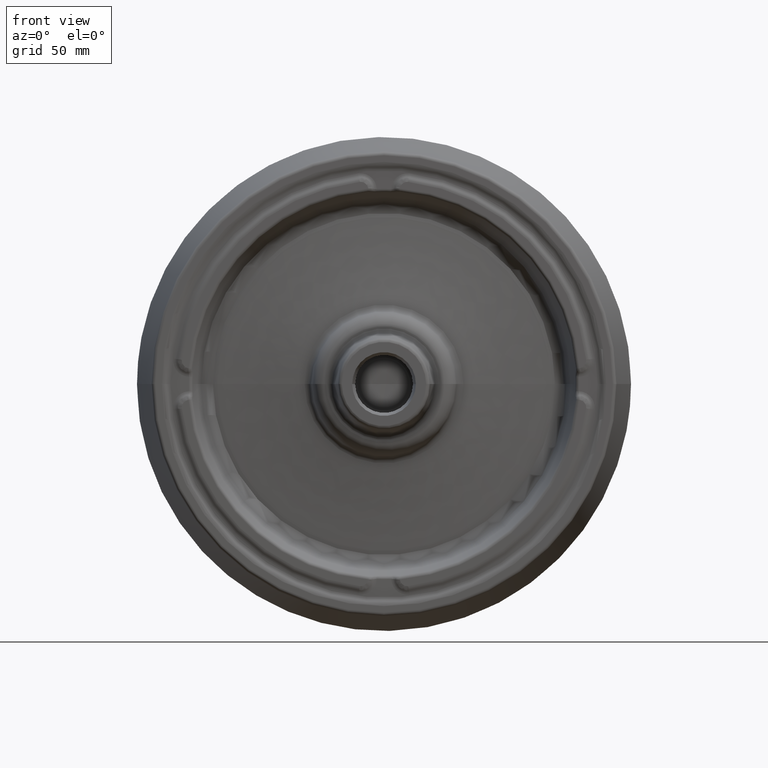
[diagram: clean part render]
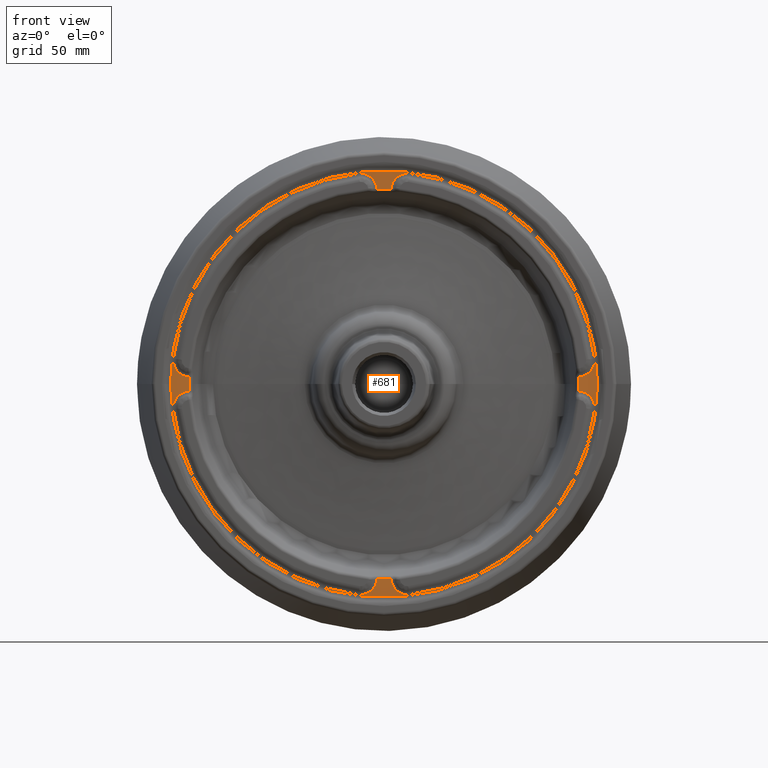
[diagram: same view with one face highlighted and labeled with its STEP entity id]
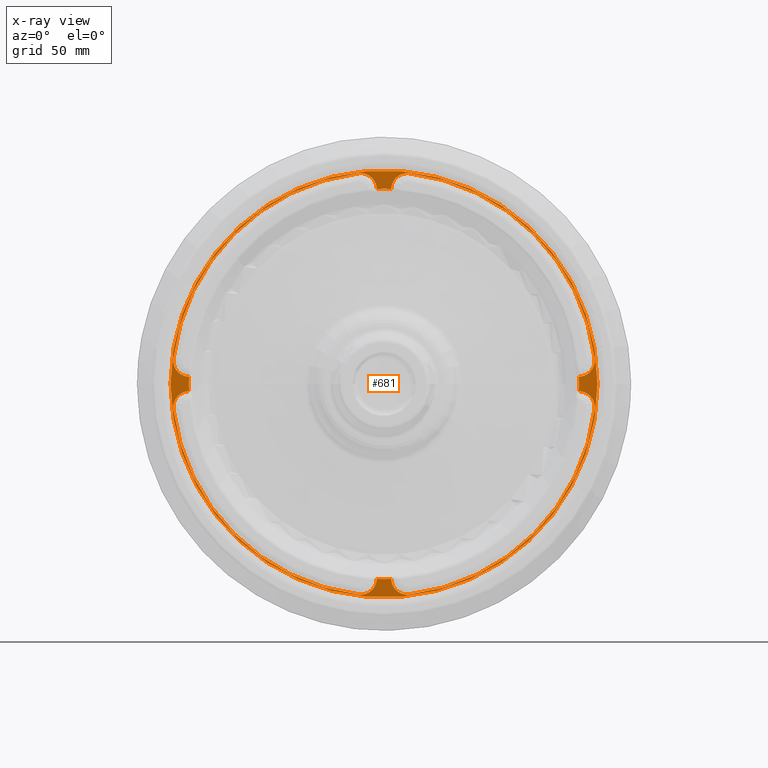
[diagram: x-ray of the same camera — body ghosted, the highlighted face saturated]
A machine part, front view. The second image highlights one B-rep face of the part: STEP entity #681.
The next image is the same camera in x-ray: the body ghosted, the highlighted face saturated — about 0% of this face is hidden behind the body in this view.
In plain terms, the highlighted planar face has unit normal (0, -1, 0).
Its self-contained STEP definition (entity closure, byte-faithful):
#201=FACE_BOUND('',#1663,.T.);
#202=FACE_BOUND('',#1664,.T.);
#441=PLANE('',#6297);
#681=ADVANCED_FACE('',(#201,#202),#441,.T.);
#1663=EDGE_LOOP('',(#2539,#2540));
#1664=EDGE_LOOP('',(#2541,#2542,#2543,#2544,#2545,#2546,#2547,#2548,#2549,
#2550,#2551,#2552,#2553,#2554,#2555,#2556));
#2539=ORIENTED_EDGE('',*,*,#4935,.T.);
#2540=ORIENTED_EDGE('',*,*,#4936,.T.);
#2541=ORIENTED_EDGE('',*,*,#4937,.F.);
#2542=ORIENTED_EDGE('',*,*,#4881,.F.);
#2543=ORIENTED_EDGE('',*,*,#4879,.F.);
#2544=ORIENTED_EDGE('',*,*,#4934,.T.);
#2545=ORIENTED_EDGE('',*,*,#4938,.F.);
#2546=ORIENTED_EDGE('',*,*,#4939,.F.);
#2547=ORIENTED_EDGE('',*,*,#4940,.F.);
#2548=ORIENTED_EDGE('',*,*,#4941,.T.);
#2549=ORIENTED_EDGE('',*,*,#4942,.F.);
#2550=ORIENTED_EDGE('',*,*,#4943,.F.);
#2551=ORIENTED_EDGE('',*,*,#4944,.F.);
#2552=ORIENTED_EDGE('',*,*,#4945,.T.);
#2553=ORIENTED_EDGE('',*,*,#4946,.F.);
#2554=ORIENTED_EDGE('',*,*,#4947,.F.);
#2555=ORIENTED_EDGE('',*,*,#4948,.F.);
#2556=ORIENTED_EDGE('',*,*,#4949,.T.);
#4341=VERTEX_POINT('',#8381);
#4342=VERTEX_POINT('',#8421);
#4343=VERTEX_POINT('',#8425);
#4386=VERTEX_POINT('',#8627);
#4387=VERTEX_POINT('',#8631);
#4388=VERTEX_POINT('',#8632);
#4389=VERTEX_POINT('',#8635);
#4390=VERTEX_POINT('',#8637);
#4391=VERTEX_POINT('',#8639);
#4392=VERTEX_POINT('',#8641);
#4393=VERTEX_POINT('',#8643);
#4394=VERTEX_POINT('',#8645);
#4395=VERTEX_POINT('',#8647);
#4396=VERTEX_POINT('',#8649);
#4397=VERTEX_POINT('',#8651);
#4398=VERTEX_POINT('',#8653);
#4399=VERTEX_POINT('',#8655);
#4400=VERTEX_POINT('',#8657);
#4879=EDGE_CURVE('',#4341,#4342,#5814,.T.);
#4881=EDGE_CURVE('',#4342,#4343,#5816,.T.);
#4934=EDGE_CURVE('',#4341,#4386,#5851,.T.);
#4935=EDGE_CURVE('',#4387,#4388,#5852,.T.);
#4936=EDGE_CURVE('',#4388,#4387,#5853,.T.);
#4937=EDGE_CURVE('',#4343,#4389,#5854,.T.);
#4938=EDGE_CURVE('',#4390,#4386,#5855,.T.);
#4939=EDGE_CURVE('',#4391,#4390,#5856,.T.);
#4940=EDGE_CURVE('',#4392,#4391,#5857,.T.);
#4941=EDGE_CURVE('',#4392,#4393,#5858,.T.);
#4942=EDGE_CURVE('',#4394,#4393,#5859,.T.);
#4943=EDGE_CURVE('',#4395,#4394,#5860,.T.);
#4944=EDGE_CURVE('',#4396,#4395,#5861,.T.);
#4945=EDGE_CURVE('',#4396,#4397,#5862,.T.);
#4946=EDGE_CURVE('',#4398,#4397,#5863,.T.);
#4947=EDGE_CURVE('',#4399,#4398,#5864,.T.);
#4948=EDGE_CURVE('',#4400,#4399,#5865,.T.);
#4949=EDGE_CURVE('',#4400,#4389,#5866,.T.);
#5814=CIRCLE('',#6231,12.472135955);
#5816=CIRCLE('',#6234,162.972135955);
#5851=CIRCLE('',#6280,149.8726821461);
#5852=CIRCLE('',#6282,164.027864045);
#5853=CIRCLE('',#6283,164.027864045);
#5854=CIRCLE('',#6284,12.472135955);
#5855=CIRCLE('',#6285,12.472135955);
#5856=CIRCLE('',#6286,162.972135955);
#5857=CIRCLE('',#6287,12.472135955);
#5858=CIRCLE('',#6288,149.8726821461);
#5859=CIRCLE('',#6289,12.472135955);
#5860=CIRCLE('',#6290,162.972135955);
#5861=CIRCLE('',#6291,12.472135955);
#5862=CIRCLE('',#6292,149.8726821461);
#5863=CIRCLE('',#6293,12.472135955);
#5864=CIRCLE('',#6294,162.972135955);
#5865=CIRCLE('',#6295,12.472135955);
#5866=CIRCLE('',#6296,149.8726821461);
#6231=AXIS2_PLACEMENT_3D('',#8420,#6889,#6890);
#6234=AXIS2_PLACEMENT_3D('',#8424,#6895,#6896);
#6280=AXIS2_PLACEMENT_3D('',#8628,#6989,#6990);
#6282=AXIS2_PLACEMENT_3D('',#8630,#6993,#6994);
#6283=AXIS2_PLACEMENT_3D('',#8633,#6995,#6996);
#6284=AXIS2_PLACEMENT_3D('',#8634,#6997,#6998);
#6285=AXIS2_PLACEMENT_3D('',#8636,#6999,#7000);
#6286=AXIS2_PLACEMENT_3D('',#8638,#7001,#7002);
#6287=AXIS2_PLACEMENT_3D('',#8640,#7003,#7004);
#6288=AXIS2_PLACEMENT_3D('',#8642,#7005,#7006);
#6289=AXIS2_PLACEMENT_3D('',#8644,#7007,#7008);
#6290=AXIS2_PLACEMENT_3D('',#8646,#7009,#7010);
#6291=AXIS2_PLACEMENT_3D('',#8648,#7011,#7012);
#6292=AXIS2_PLACEMENT_3D('',#8650,#7013,#7014);
#6293=AXIS2_PLACEMENT_3D('',#8652,#7015,#7016);
#6294=AXIS2_PLACEMENT_3D('',#8654,#7017,#7018);
#6295=AXIS2_PLACEMENT_3D('',#8656,#7019,#7020);
#6296=AXIS2_PLACEMENT_3D('',#8658,#7021,#7022);
#6297=AXIS2_PLACEMENT_3D('',#8659,#7023,#7024);
#6889=DIRECTION('',(0.,-1.,0.));
#6890=DIRECTION('',(-0.0281275170789497,0.,0.999604343119303));
#6895=DIRECTION('',(0.,-1.,0.));
#6896=DIRECTION('',(-0.992821999214597,0.,-0.1196013289037));
#6989=DIRECTION('',(0.,1.,0.));
#6990=DIRECTION('',(-0.999318348193092,0.,-0.0369166488813797));
#6993=DIRECTION('',(0.,-1.,0.));
#6994=DIRECTION('',(1.,0.,0.));
#6995=DIRECTION('',(0.,-1.,0.));
#6996=DIRECTION('',(-1.,0.,0.));
#6997=DIRECTION('',(0.,-1.,0.));
#6998=DIRECTION('',(-0.119601328903601,0.,-0.992821999214608));
#6999=DIRECTION('',(0.,-1.,0.));
#7000=DIRECTION('',(-0.992821999214597,0.,0.1196013289037));
#7001=DIRECTION('',(0.,-1.,0.));
#7002=DIRECTION('',(-0.1196013289037,0.,0.992821999214597));
#7003=DIRECTION('',(0.,-1.,0.));
#7004=DIRECTION('',(0.999604343119304,0.,0.0281275170789297));
#7005=DIRECTION('',(0.,1.,0.));
#7006=DIRECTION('',(-0.0369166488828713,0.,0.999318348193036));
#7007=DIRECTION('',(0.,-1.,0.));
#7008=DIRECTION('',(0.1196013289037,0.,0.992821999214597));
#7009=DIRECTION('',(0.,-1.,0.));
#7010=DIRECTION('',(0.992821999214597,0.,0.1196013289037));
#7011=DIRECTION('',(0.,-1.,0.));
#7012=DIRECTION('',(0.0281275170789497,0.,-0.999604343119303));
#7013=DIRECTION('',(0.,1.,0.));
#7014=DIRECTION('',(0.999318348193092,0.,0.0369166488813797));
#7015=DIRECTION('',(0.,-1.,0.));
#7016=DIRECTION('',(0.992821999214597,0.,-0.1196013289037));
#7017=DIRECTION('',(0.,-1.,0.));
#7018=DIRECTION('',(0.1196013289037,0.,-0.992821999214597));
#7019=DIRECTION('',(0.,-1.,0.));
#7020=DIRECTION('',(-0.999604343119304,0.,-0.0281275170789297));
#7021=DIRECTION('',(0.,1.,0.));
#7022=DIRECTION('',(0.0369166488828713,0.,-0.999318348193036));
#7023=DIRECTION('',(0.,-1.,0.));
#7024=DIRECTION('',(1.,0.,0.));
#8381=CARTESIAN_POINT('',(-149.7705211135,1.999979667506,-5.532798347614));
#8420=CARTESIAN_POINT('',(-149.4197108818,2.,-18.));
#8421=CARTESIAN_POINT('',(-161.8023218351,2.,-19.49168403449));
#8424=CARTESIAN_POINT('',(0.,2.,0.));
#8425=CARTESIAN_POINT('',(-19.49168403448,2.,-161.8023218351));
#8627=CARTESIAN_POINT('',(-149.7705211123,1.999981977739,5.532798398588));
#8628=CARTESIAN_POINT('',(0.,2.,0.));
#8630=CARTESIAN_POINT('',(0.,2.,0.));
#8631=CARTESIAN_POINT('',(164.027864045,2.,-1.031764928282E-014));
#8632=CARTESIAN_POINT('',(-164.027864045,2.,0.));
#8633=CARTESIAN_POINT('',(0.,2.,0.));
#8634=CARTESIAN_POINT('',(-18.,2.,-149.4197108818));
#8635=CARTESIAN_POINT('',(-5.532797299454,2.,-149.7705211572));
#8636=CARTESIAN_POINT('',(-149.4197108818,2.,18.));
#8637=CARTESIAN_POINT('',(-161.8023218351,2.,19.49168403449));
#8638=CARTESIAN_POINT('',(0.,2.,0.));
#8639=CARTESIAN_POINT('',(-19.49168403448,2.,161.8023218351));
#8640=CARTESIAN_POINT('',(-18.,2.,149.4197108818));
#8641=CARTESIAN_POINT('',(-5.53279834758,1.999979667506,149.7705211135));
#8642=CARTESIAN_POINT('',(0.,2.,0.));
#8643=CARTESIAN_POINT('',(5.532797299453,2.,149.7705211572));
#8644=CARTESIAN_POINT('',(18.,2.,149.4197108818));
#8645=CARTESIAN_POINT('',(19.49168403448,2.,161.8023218351));
#8646=CARTESIAN_POINT('',(0.,2.,0.));
#8647=CARTESIAN_POINT('',(161.8023218351,2.,19.49168403448));
#8648=CARTESIAN_POINT('',(149.4197108818,2.,18.));
#8649=CARTESIAN_POINT('',(149.7705211135,1.999979667506,5.532798347614));
#8650=CARTESIAN_POINT('',(0.,2.,0.));
#8651=CARTESIAN_POINT('',(149.7705211123,1.999981977739,-5.532798398588));
#8652=CARTESIAN_POINT('',(149.4197108818,2.,-18.));
#8653=CARTESIAN_POINT('',(161.8023218351,2.,-19.49168403449));
#8654=CARTESIAN_POINT('',(0.,2.,0.));
#8655=CARTESIAN_POINT('',(19.49168403448,2.,-161.8023218351));
#8656=CARTESIAN_POINT('',(18.,2.,-149.4197108818));
#8657=CARTESIAN_POINT('',(5.53279834758,1.999979667506,-149.7705211135));
#8658=CARTESIAN_POINT('',(0.,2.,0.));
#8659=CARTESIAN_POINT('',(0.,2.,0.));